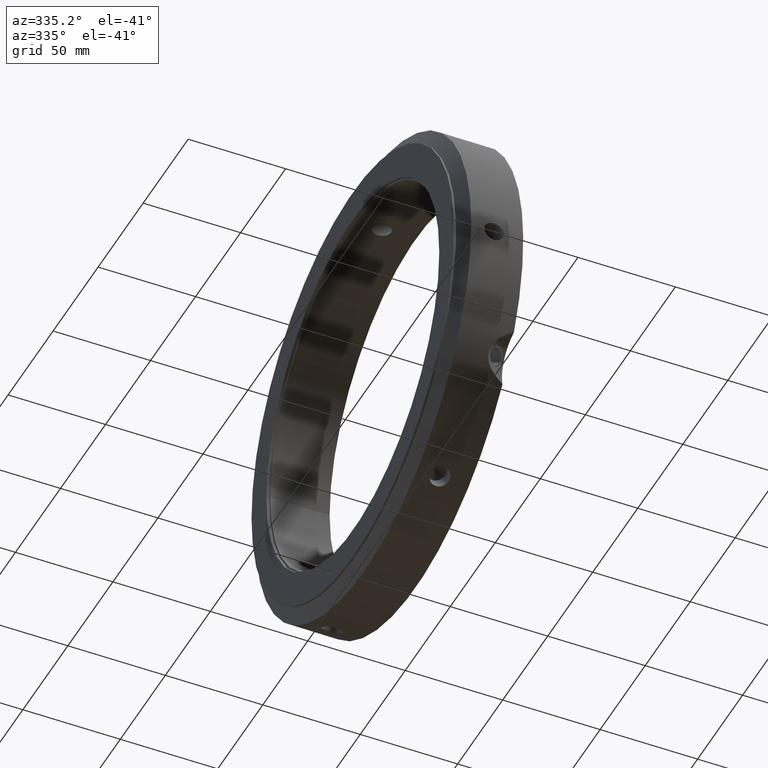
[diagram: clean part render]
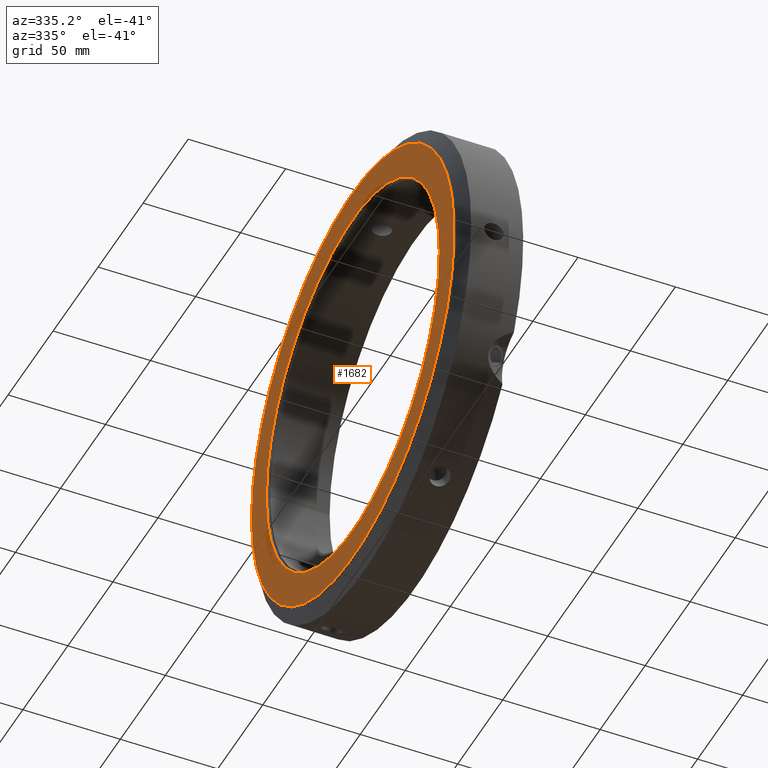
[diagram: same view with one face highlighted and labeled with its STEP entity id]
A machine part, auxiliary view. The second image highlights one B-rep face of the part: STEP entity #1682.
In plain terms, the highlighted planar face has unit normal (-1, 0, 0).
Its self-contained STEP definition (entity closure, byte-faithful):
#1648=CARTESIAN_POINT('',(-2.858824E-014,96.000000000000014,0.0));
#1649=VERTEX_POINT('',#1648);
#1650=CARTESIAN_POINT('',(-2.858824E-014,0.0,0.0));
#1651=DIRECTION('',(1.0,0.0,0.0));
#1652=DIRECTION('',(0.0,1.0,0.0));
#1653=AXIS2_PLACEMENT_3D('',#1650,#1651,#1652);
#1654=CIRCLE('',#1653,96.000000000000014);
#1655=EDGE_CURVE('',#1649,#1649,#1654,.T.);
#1663=CARTESIAN_POINT('',(-3.205769E-014,104.25,0.0));
#1664=DIRECTION('',(-1.0,0.0,0.0));
#1665=DIRECTION('',(0.0,0.0,1.0));
#1666=AXIS2_PLACEMENT_3D('',#1663,#1664,#1665);
#1667=PLANE('',#1666);
#1668=CARTESIAN_POINT('',(-3.552714E-014,112.5,0.0));
#1669=VERTEX_POINT('',#1668);
#1670=CARTESIAN_POINT('',(-3.552714E-014,0.0,0.0));
#1671=DIRECTION('',(1.0,0.0,0.0));
#1672=DIRECTION('',(0.0,1.0,0.0));
#1673=AXIS2_PLACEMENT_3D('',#1670,#1671,#1672);
#1674=CIRCLE('',#1673,112.5);
#1675=EDGE_CURVE('',#1669,#1669,#1674,.T.);
#1676=ORIENTED_EDGE('',*,*,#1675,.F.);
#1677=EDGE_LOOP('',(#1676));
#1678=FACE_OUTER_BOUND('',#1677,.T.);
#1679=ORIENTED_EDGE('',*,*,#1655,.T.);
#1680=EDGE_LOOP('',(#1679));
#1681=FACE_BOUND('',#1680,.T.);
#1682=ADVANCED_FACE('',(#1678,#1681),#1667,.T.);